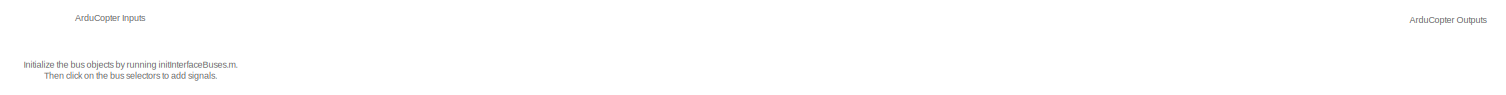
[diagram: root canvas - part 1/3, full width, top band]
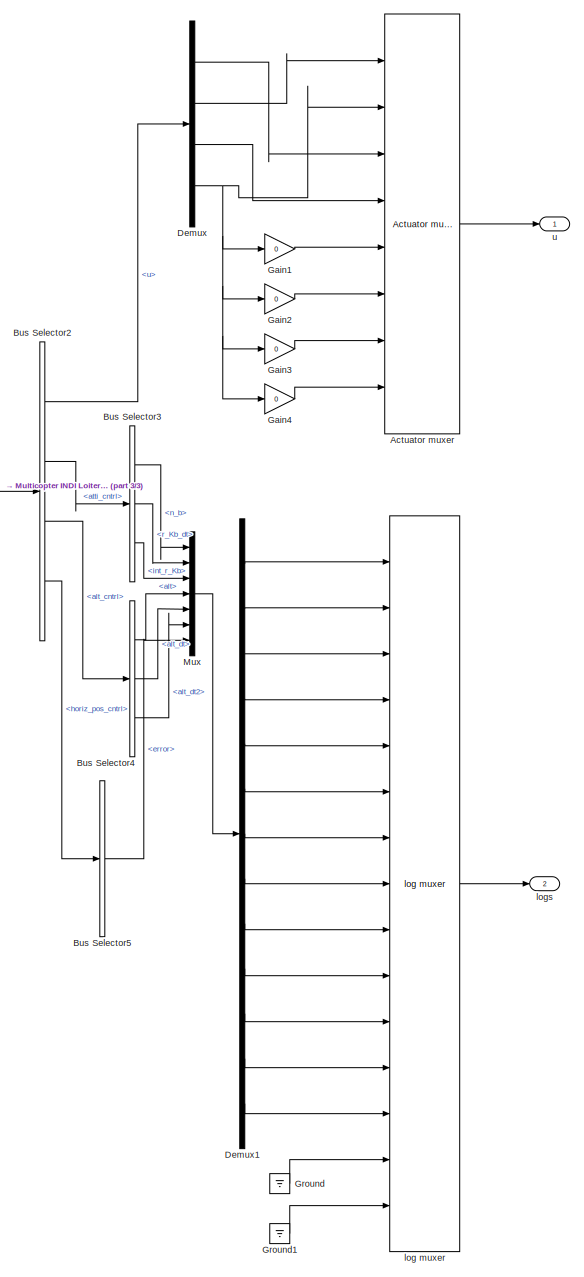
[diagram: root canvas - part 2/3, right side, full height]
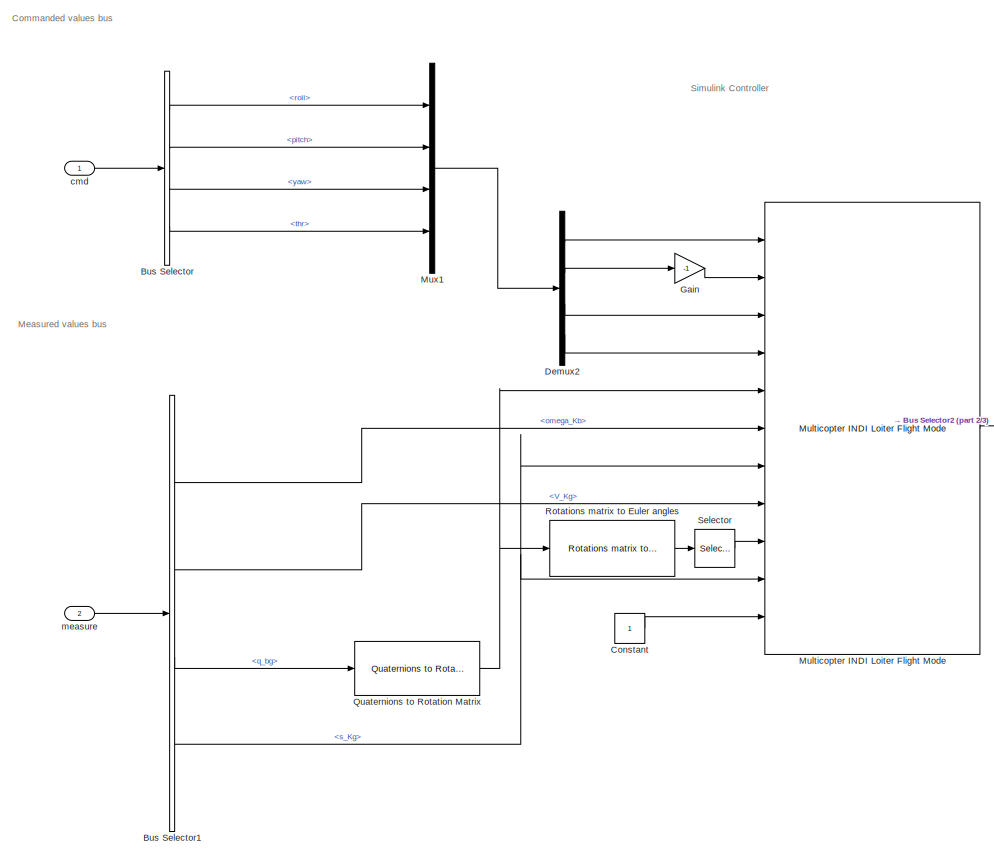
[diagram: root canvas - part 3/3, central region]
MODEL slx_c15245084289
KIND model
CONFIG AbsTol = auto
CONFIG EnableMultiTasking = on
CONFIG FixedStep = 0.01
CONFIG MaxStep = auto
CONFIG MinStep = auto
CONFIG RelTol = 1e-4
CONFIG SampleTimeConstraint = Unconstrained
CONFIG Solver = FixedStepAuto
CONFIG SolverName = FixedStepAuto
CONFIG StartTime = 0.0
CONFIG StopTime = 1000
BLOCK [Reference] Actuator muxer  REF=ardupilot_custom_controller_lib/Actuator muxer  (lib defined in slx_bbc4fb9a1307)
  Ports = [8, 1]
  SourceBlock = ardupilot_custom_controller_lib/Actuator muxer
  SourceProductName = LADAC
BLOCK [BusSelector] Bus Selector
  OutputAsBus = off
  OutputSignals = roll,pitch,yaw,thr
  Ports = [1, 4]
BLOCK [BusSelector] Bus Selector1
  OutputAsBus = off
  OutputSignals = omega_Kb,V_Kg,q_bg,s_Kg
  Ports = [1, 4]
BLOCK [BusSelector] Bus Selector2
  OutputAsBus = off
  OutputSignals = u,atti_cntrl,alt_cntrl,horiz_pos_cntrl
  Ports = [1, 4]
BLOCK [BusSelector] Bus Selector3
  OutputAsBus = off
  OutputSignals = error.n_b,error.r_Kb_dt,error.int_r_Kb
  Ports = [1, 3]
BLOCK [BusSelector] Bus Selector4
  OutputAsBus = off
  OutputSignals = error.alt,error.alt_dt,error.alt_dt2
  Ports = [1, 3]
BLOCK [BusSelector] Bus Selector5
  OutputAsBus = off
  OutputSignals = error
  Ports = [1, 1]
BLOCK [Constant] Constant
BLOCK [Demux] Demux
  DisplayOption = bar
  Ports = [1, 4]
BLOCK [Demux] Demux1
  DisplayOption = bar
  Outputs = 13
  Ports = [1, 13]
BLOCK [Demux] Demux2
  DisplayOption = bar
  Ports = [1, 4]
BLOCK [Gain] Gain
  Gain = -1
  OutDataTypeStr = Inherit: Inherit via internal rule
  ParamDataTypeStr = Inherit: Inherit via internal rule
  SaturateOnIntegerOverflow = off
BLOCK [Gain] Gain1
  Gain = 0
  OutDataTypeStr = Inherit: Inherit via internal rule
  ParamDataTypeStr = Inherit: Inherit via internal rule
  SaturateOnIntegerOverflow = off
BLOCK [Gain] Gain2
  Gain = 0
  OutDataTypeStr = Inherit: Inherit via internal rule
  ParamDataTypeStr = Inherit: Inherit via internal rule
  SaturateOnIntegerOverflow = off
BLOCK [Gain] Gain3
  Gain = 0
  OutDataTypeStr = Inherit: Inherit via internal rule
  ParamDataTypeStr = Inherit: Inherit via internal rule
  SaturateOnIntegerOverflow = off
BLOCK [Gain] Gain4
  Gain = 0
  OutDataTypeStr = Inherit: Inherit via internal rule
  ParamDataTypeStr = Inherit: Inherit via internal rule
  SaturateOnIntegerOverflow = off
BLOCK [Ground] Ground
BLOCK [Ground] Ground1
BLOCK [Reference] Multicopter INDI Loiter Flight Mode  REF=fmCopterLoiterIndi_lib/Multicopter INDI Loiter Flight Mode
  Ports = [11, 1]
  SourceBlock = fmCopterLoiterIndi_lib/Multicopter INDI Loiter Flight Mode
  SourceProductName = LADAC
BLOCK [Mux] Mux
  DisplayOption = bar
  Inputs = 7
  Ports = [7, 1]
BLOCK [Mux] Mux1
  DisplayOption = bar
  Ports = [4, 1]
BLOCK [Reference] Quaternions to Rotation Matrix  REF=axes_transformation_lib/Quaternions to Rotation Matrix  (lib defined in slx_69e2413c78c0)
  Ports = [1, 1]
  SourceBlock = axes_transformation_lib/Quaternions to Rotation Matrix
  SourceProductName = LADAC
  SourceType = SubSystem
BLOCK [Reference] Rotations matrix to Euler angles  REF=axes_transformation_lib/Rotations matrix to Euler angles  (lib defined in slx_69e2413c78c0)
  Ports = [1, 1]
  SourceBlock = axes_transformation_lib/Rotations matrix to Euler angles
  SourceProductName = LADAC
  SourceType = SubSystem
BLOCK [Selector] Selector
  IndexOptions = Index vector (dialog)
  Indices = 3
  InputPortWidth = 3
  OutputSizes = 1
  Ports = [1, 1]
BLOCK [Inport] cmd
  IconDisplay = Port number
  OutDataTypeStr = Bus: cmdBus
BLOCK [Reference] log muxer  REF=ardupilot_custom_controller_lib/log muxer  (lib defined in slx_bbc4fb9a1307)
  Ports = [15, 1]
  SourceBlock = ardupilot_custom_controller_lib/log muxer
  SourceProductName = LADAC
BLOCK [Outport] logs
  IconDisplay = Port number
  Port = 2
BLOCK [Inport] measure
  IconDisplay = Port number
  OutDataTypeStr = Bus: measureBus
  Port = 2
BLOCK [Outport] u
  IconDisplay = Port number
ANNOTATION (root): ArduCopter Inputs
ANNOTATION (root): ArduCopter Outputs
ANNOTATION (root): Simulink Controller
ANNOTATION (root): Commanded values bus
ANNOTATION (root): Measured values bus
ANNOTATION (root): Initialize the bus objects by running initInterfaceBuses.m. Then click on the bus selectors to add signals.
LINE Actuator muxer:1 -> u:1
LINE Bus Selector1:1 -> Multicopter INDI Loiter Flight Mode:6
LINE Bus Selector1:2 -> Multicopter INDI Loiter Flight Mode:8
LINE Bus Selector1:3 -> Quaternions to Rotation Matrix:1
NET Bus Selector1:4 -> Multicopter INDI Loiter Flight Mode:10, Multicopter INDI Loiter Flight Mode:7
LINE Bus Selector2:1 -> Demux:1
LINE Bus Selector2:2 -> Bus Selector3:1
LINE Bus Selector2:3 -> Bus Selector4:1
LINE Bus Selector2:4 -> Bus Selector5:1
LINE Bus Selector3:1 -> Mux:1
LINE Bus Selector3:2 -> Mux:2
LINE Bus Selector3:3 -> Mux:3
LINE Bus Selector4:1 -> Mux:4
LINE Bus Selector4:2 -> Mux:5
LINE Bus Selector4:3 -> Mux:6
LINE Bus Selector5:1 -> Mux:7
LINE Bus Selector:1 -> Mux1:1
LINE Bus Selector:2 -> Mux1:2
LINE Bus Selector:3 -> Mux1:3
LINE Bus Selector:4 -> Mux1:4
LINE Constant:1 -> Multicopter INDI Loiter Flight Mode:11
LINE Demux1:1 -> log muxer:1
LINE Demux1:10 -> log muxer:10
LINE Demux1:11 -> log muxer:11
LINE Demux1:12 -> log muxer:12
LINE Demux1:13 -> log muxer:13
LINE Demux1:2 -> log muxer:2
LINE Demux1:3 -> log muxer:3
LINE Demux1:4 -> log muxer:4
LINE Demux1:5 -> log muxer:5
LINE Demux1:6 -> log muxer:6
LINE Demux1:7 -> log muxer:7
LINE Demux1:8 -> log muxer:8
LINE Demux1:9 -> log muxer:9
LINE Demux2:1 -> Multicopter INDI Loiter Flight Mode:1
LINE Demux2:2 -> Gain:1
LINE Demux2:3 -> Multicopter INDI Loiter Flight Mode:3
LINE Demux2:4 -> Multicopter INDI Loiter Flight Mode:4
LINE Demux:1 -> Actuator muxer:3
LINE Demux:2 -> Actuator muxer:1
LINE Demux:3 -> Actuator muxer:4
NET Demux:4 -> Actuator muxer:2, Gain1:1, Gain2:1, Gain3:1, Gain4:1
LINE Gain1:1 -> Actuator muxer:5
LINE Gain2:1 -> Actuator muxer:6
LINE Gain3:1 -> Actuator muxer:7
LINE Gain4:1 -> Actuator muxer:8
LINE Gain:1 -> Multicopter INDI Loiter Flight Mode:2
LINE Ground1:1 -> log muxer:15
LINE Ground:1 -> log muxer:14
LINE Multicopter INDI Loiter Flight Mode:1 -> Bus Selector2:1
LINE Mux1:1 -> Demux2:1
LINE Mux:1 -> Demux1:1
NET Quaternions to Rotation Matrix:1 -> Multicopter INDI Loiter Flight Mode:5, Rotations matrix to Euler angles:1
LINE Rotations matrix to Euler angles:1 -> Selector:1
LINE Selector:1 -> Multicopter INDI Loiter Flight Mode:9
LINE cmd:1 -> Bus Selector:1
LINE log muxer:1 -> logs:1
LINE measure:1 -> Bus Selector1:1
note: NET lines group one-source signal fan-out (src -> all destinations, sorted); 1:1 wires keep LINE
